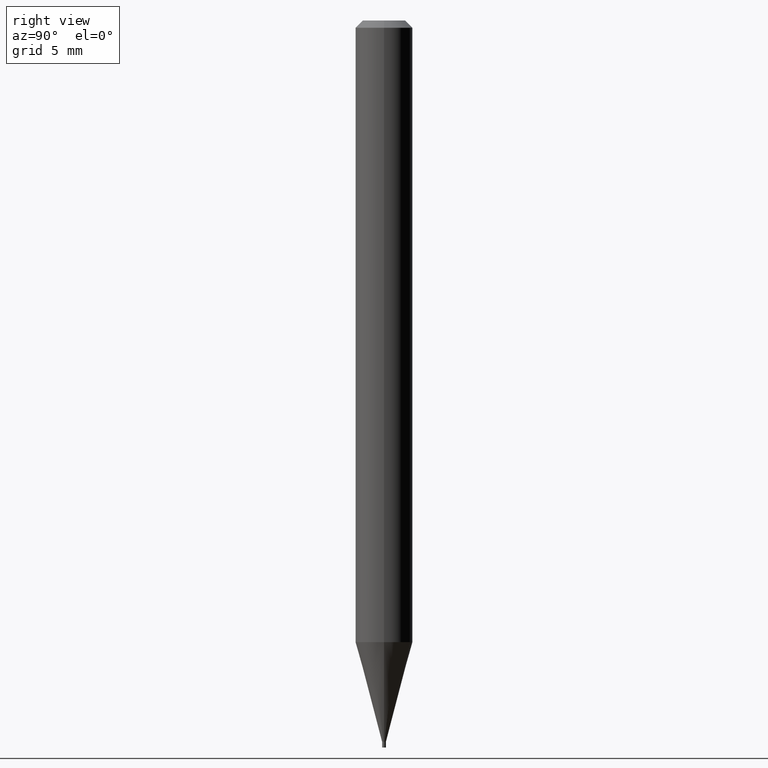
[diagram: clean part render]
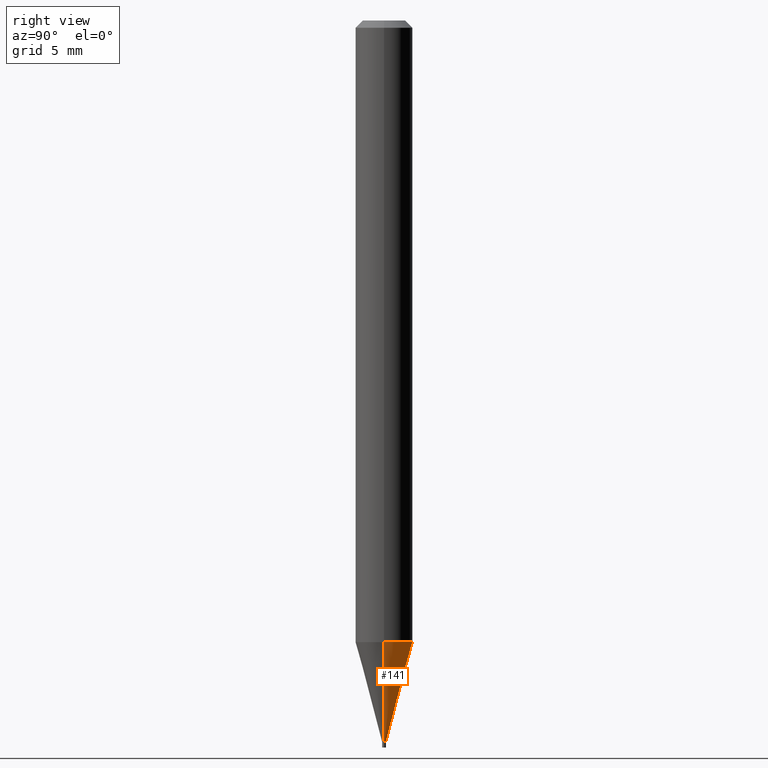
[diagram: same view with one face highlighted and labeled with its STEP entity id]
A machine part, right view. The second image highlights one B-rep face of the part: STEP entity #141.
In plain terms, the highlighted conical surface has half-angle 15 deg.
Its self-contained STEP definition (entity closure, byte-faithful):
#5 = EDGE_CURVE ( 'NONE', #278, #407, #464, .T. ) ;
#50 = DIRECTION ( 'NONE',  ( -2.445468806185136597E-29, 3.491481338843145583E-15, 1.000000000000000000 ) ) ;
#74 = CARTESIAN_POINT ( 'NONE',  ( -0.05904999999999999832, -4.058472788161738088E-15, -1.282564000502955048 ) ) ;
#82 = VERTEX_POINT ( 'NONE', #74 ) ;
#115 = VECTOR ( 'NONE', #256, 39.37007874015747433 ) ;
#123 = EDGE_CURVE ( 'NONE', #278, #300, #170, .T. ) ;
#136 = DIRECTION ( 'NONE',  ( 1.000000000000000000, -6.982962677686381095E-15, 0.000000000000000000 ) ) ;
#138 = VECTOR ( 'NONE', #273, 39.37007874015747433 ) ;
#141 = ADVANCED_FACE ( 'NONE', ( #316 ), #442, .T. ) ;
#153 = CARTESIAN_POINT ( 'NONE',  ( 3.136470255165994153E-29, -4.478048273628078370E-15, -1.282564000502955048 ) ) ;
#161 = CARTESIAN_POINT ( 'NONE',  ( -0.003949999999999924058, -5.167956090403845093E-15, -1.488199999999999967 ) ) ;
#170 = LINE ( 'NONE', #418, #138 ) ;
#172 = DIRECTION ( 'NONE',  ( 1.000000000000000000, -6.982962677686381095E-15, 0.000000000000000000 ) ) ;
#185 = ORIENTED_EDGE ( 'NONE', *, *, #5, .T. ) ;
#196 = AXIS2_PLACEMENT_3D ( 'NONE', #420, #50, #136 ) ;
#208 = DIRECTION ( 'NONE',  ( -2.445468806185136597E-29, 3.491481338843145583E-15, 1.000000000000000000 ) ) ;
#223 = LINE ( 'NONE', #161, #115 ) ;
#243 = CARTESIAN_POINT ( 'NONE',  ( 0.05904999999999999832, -4.890392219745453290E-15, -1.282564000502955048 ) ) ;
#244 = EDGE_LOOP ( 'NONE', ( #185, #353, #378, #383 ) ) ;
#250 = AXIS2_PLACEMENT_3D ( 'NONE', #153, #290, #374 ) ;
#256 = DIRECTION ( 'NONE',  ( -0.2588190451025213501, 5.211531920934551042E-15, 0.9659258262890682012 ) ) ;
#273 = DIRECTION ( 'NONE',  ( 0.2588190451025213501, 1.565188264969621968E-15, 0.9659258262890682012 ) ) ;
#276 = EDGE_CURVE ( 'NONE', #300, #82, #367, .T. ) ;
#278 = VERTEX_POINT ( 'NONE', #456 ) ;
#290 = DIRECTION ( 'NONE',  ( -2.445468806185136597E-29, 3.491481338843145583E-15, 1.000000000000000000 ) ) ;
#300 = VERTEX_POINT ( 'NONE', #243 ) ;
#316 = FACE_OUTER_BOUND ( 'NONE', #244, .T. ) ;
#353 = ORIENTED_EDGE ( 'NONE', *, *, #412, .T. ) ;
#367 = CIRCLE ( 'NONE', #250, 0.05904999999999999832 ) ;
#369 = CARTESIAN_POINT ( 'NONE',  ( -0.003949999999999924058, -4.613214439282791985E-15, -1.488199999999999967 ) ) ;
#374 = DIRECTION ( 'NONE',  ( 1.000000000000000000, -6.982962677686273021E-15, 0.000000000000000000 ) ) ;
#378 = ORIENTED_EDGE ( 'NONE', *, *, #276, .F. ) ;
#383 = ORIENTED_EDGE ( 'NONE', *, *, #123, .F. ) ;
#385 = CARTESIAN_POINT ( 'NONE',  ( 3.639346677364720273E-29, -5.196022528466369115E-15, -1.488199999999999967 ) ) ;
#398 = AXIS2_PLACEMENT_3D ( 'NONE', #385, #208, #172 ) ;
#407 = VERTEX_POINT ( 'NONE', #369 ) ;
#412 = EDGE_CURVE ( 'NONE', #407, #82, #223, .T. ) ;
#418 = CARTESIAN_POINT ( 'NONE',  ( 0.003949999999999924058, -5.223605231043229660E-15, -1.488199999999999967 ) ) ;
#420 = CARTESIAN_POINT ( 'NONE',  ( 3.639346677364720273E-29, -5.196022528466369115E-15, -1.488199999999999967 ) ) ;
#442 = CONICAL_SURFACE ( 'NONE', #196, 0.003949999999999924058, 0.2617993877991500740 ) ;
#456 = CARTESIAN_POINT ( 'NONE',  ( 0.003949999999999924058, -5.223605231043229660E-15, -1.488199999999999967 ) ) ;
#464 = CIRCLE ( 'NONE', #398, 0.003949999999999924058 ) ;